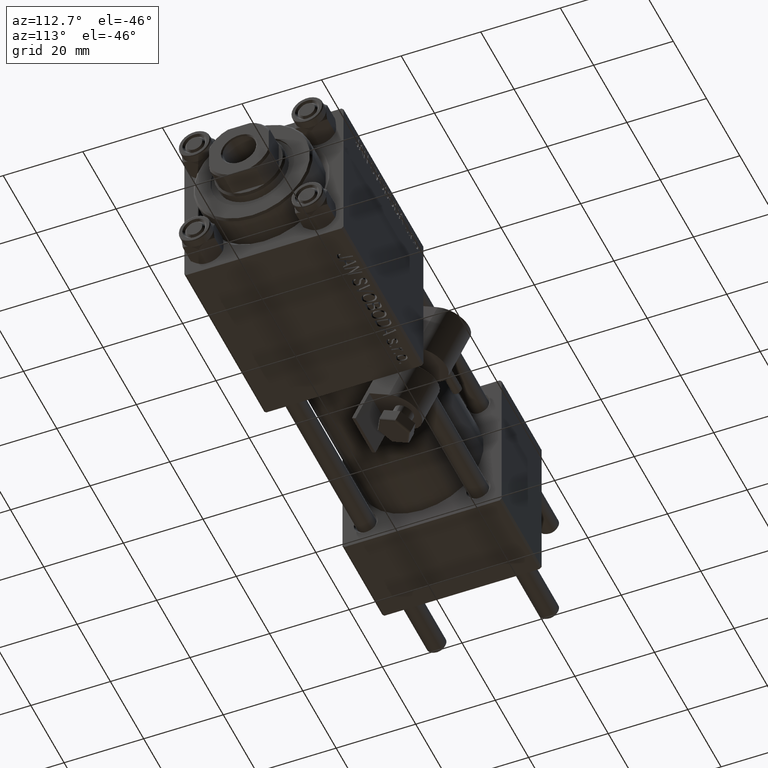
[diagram: clean part render]
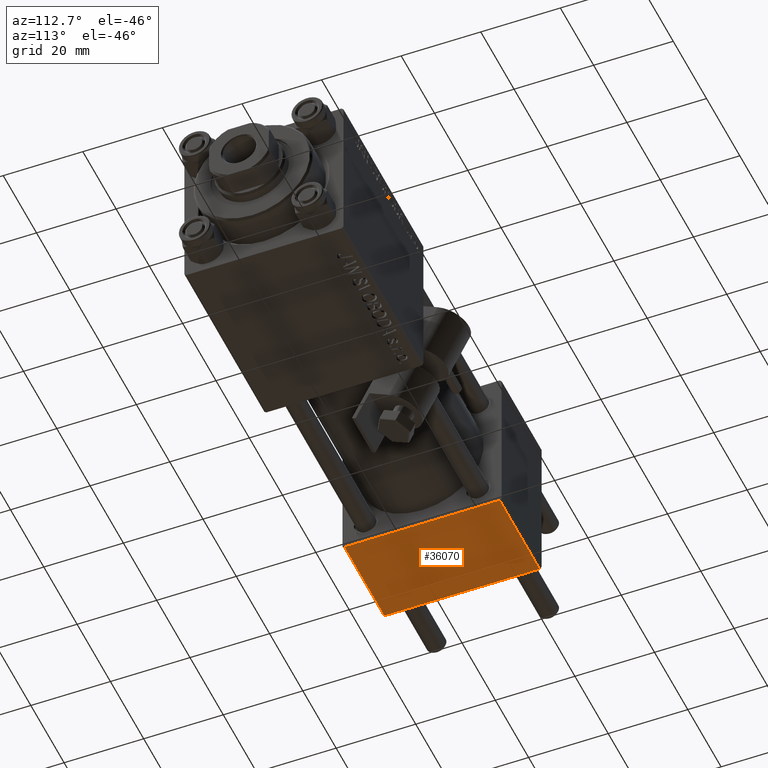
[diagram: same view with one face highlighted and labeled with its STEP entity id]
A machine part, auxiliary view. The second image highlights one B-rep face of the part: STEP entity #36070.
In plain terms, the highlighted planar face has unit normal (0, -0, -1).
Its self-contained STEP definition (entity closure, byte-faithful):
#256 = VECTOR ( 'NONE', #9457, 1000.000000000000000 ) ;
#1321 = DIRECTION ( 'NONE',  ( 0.000000000000000000, -1.000000000000000000, 1.734723475976807094E-16 ) ) ;
#4404 = LINE ( 'NONE', #13308, #8823 ) ;
#6440 = EDGE_CURVE ( 'NONE', #26682, #42192, #43884, .T. ) ;
#7723 = VECTOR ( 'NONE', #1321, 1000.000000000000000 ) ;
#8277 = ORIENTED_EDGE ( 'NONE', *, *, #47721, .F. ) ;
#8705 = CARTESIAN_POINT ( 'NONE',  ( 24.00000000000000000, 19.50000000000000711, -20.00000000000000711 ) ) ;
#8823 = VECTOR ( 'NONE', #16205, 1000.000000000000000 ) ;
#9252 = CARTESIAN_POINT ( 'NONE',  ( 24.00000000000000000, 20.00000000000000000, -20.00000000000000711 ) ) ;
#9457 = DIRECTION ( 'NONE',  ( 1.000000000000000000, 0.000000000000000000, 0.000000000000000000 ) ) ;
#10599 = ORIENTED_EDGE ( 'NONE', *, *, #24592, .T. ) ;
#13308 = CARTESIAN_POINT ( 'NONE',  ( 0.000000000000000000, -19.50000000000000711, -20.00000000000000000 ) ) ;
#13364 = LINE ( 'NONE', #9252, #7723 ) ;
#15655 = ORIENTED_EDGE ( 'NONE', *, *, #6440, .T. ) ;
#15943 = FACE_OUTER_BOUND ( 'NONE', #40868, .T. ) ;
#16205 = DIRECTION ( 'NONE',  ( -1.000000000000000000, 0.000000000000000000, 0.000000000000000000 ) ) ;
#21955 = VERTEX_POINT ( 'NONE', #40732 ) ;
#24424 = DIRECTION ( 'NONE',  ( 0.000000000000000000, -1.734723475976806848E-16, -1.000000000000000000 ) ) ;
#24592 = EDGE_CURVE ( 'NONE', #46812, #21955, #4404, .T. ) ;
#24952 = ORIENTED_EDGE ( 'NONE', *, *, #42843, .T. ) ;
#26298 = AXIS2_PLACEMENT_3D ( 'NONE', #48303, #24424, #40599 ) ;
#26682 = VERTEX_POINT ( 'NONE', #36876 ) ;
#30856 = VECTOR ( 'NONE', #42517, 1000.000000000000000 ) ;
#36070 = ADVANCED_FACE ( 'NONE', ( #15943 ), #43681, .T. ) ;
#36749 = CARTESIAN_POINT ( 'NONE',  ( 24.00000000000000000, -19.50000000000000711, -20.00000000000000000 ) ) ;
#36876 = CARTESIAN_POINT ( 'NONE',  ( 0.000000000000000000, 19.50000000000000711, -20.00000000000000711 ) ) ;
#40599 = DIRECTION ( 'NONE',  ( 0.000000000000000000, 1.000000000000000000, -1.734723475976806848E-16 ) ) ;
#40732 = CARTESIAN_POINT ( 'NONE',  ( 0.000000000000000000, -19.50000000000000711, -20.00000000000000000 ) ) ;
#40868 = EDGE_LOOP ( 'NONE', ( #8277, #15655, #24952, #10599 ) ) ;
#42192 = VERTEX_POINT ( 'NONE', #44625 ) ;
#42517 = DIRECTION ( 'NONE',  ( 0.000000000000000000, -1.000000000000000000, 1.734723475976807094E-16 ) ) ;
#42843 = EDGE_CURVE ( 'NONE', #42192, #46812, #13364, .T. ) ;
#43681 = PLANE ( 'NONE',  #26298 ) ;
#43884 = LINE ( 'NONE', #8705, #256 ) ;
#44625 = CARTESIAN_POINT ( 'NONE',  ( 24.00000000000000000, 19.50000000000000711, -20.00000000000000711 ) ) ;
#45863 = LINE ( 'NONE', #49448, #30856 ) ;
#46812 = VERTEX_POINT ( 'NONE', #36749 ) ;
#47721 = EDGE_CURVE ( 'NONE', #26682, #21955, #45863, .T. ) ;
#48303 = CARTESIAN_POINT ( 'NONE',  ( 24.00000000000000000, 20.00000000000000000, -20.00000000000000711 ) ) ;
#49448 = CARTESIAN_POINT ( 'NONE',  ( 0.000000000000000000, 20.00000000000000000, -20.00000000000000711 ) ) ;